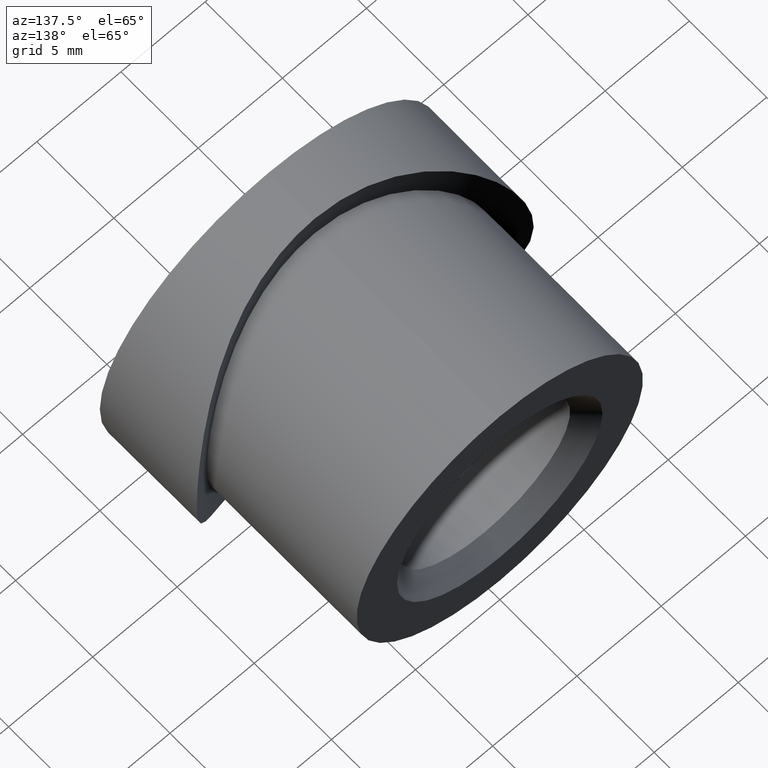
[diagram: clean part render]
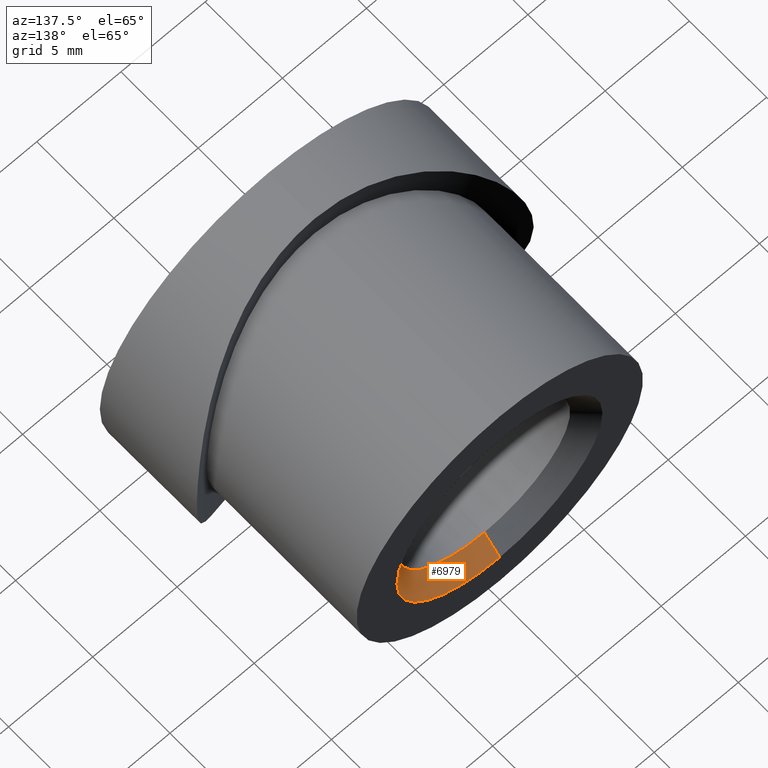
[diagram: same view with one face highlighted and labeled with its STEP entity id]
A machine part, auxiliary view. The second image highlights one B-rep face of the part: STEP entity #6979.
In plain terms, the highlighted conical surface has half-angle 45 deg.
Its self-contained STEP definition (entity closure, byte-faithful):
#439 = ORIENTED_EDGE ( 'NONE', *, *, #13262, .F. ) ;
#1266 = VECTOR ( 'NONE', #7629, 1000.000000000000100 ) ;
#2234 = VERTEX_POINT ( 'NONE', #7627 ) ;
#2438 = CARTESIAN_POINT ( 'NONE',  ( 0.0000000000000000000, 13.99999999999999800, 0.0000000000000000000 ) ) ;
#2620 = DIRECTION ( 'NONE',  ( 8.659560562354951300E-017, 0.7071067811865460200, -0.7071067811865489100 ) ) ;
#2732 = VERTEX_POINT ( 'NONE', #13981 ) ;
#3152 = ORIENTED_EDGE ( 'NONE', *, *, #9050, .F. ) ;
#3464 = CONICAL_SURFACE ( 'NONE', #10548, 5.099999999999996100, 0.7853981633974503900 ) ;
#3562 = ORIENTED_EDGE ( 'NONE', *, *, #7635, .T. ) ;
#3887 = AXIS2_PLACEMENT_3D ( 'NONE', #2438, #4873, #12984 ) ;
#4390 = LINE ( 'NONE', #13471, #1266 ) ;
#4419 = CARTESIAN_POINT ( 'NONE',  ( 0.0000000000000000000, 13.99999999999999800, 0.0000000000000000000 ) ) ;
#4873 = DIRECTION ( 'NONE',  ( 0.0000000000000000000, 1.000000000000000000, 0.0000000000000000000 ) ) ;
#4983 = DIRECTION ( 'NONE',  ( 0.0000000000000000000, -1.000000000000000000, 0.0000000000000000000 ) ) ;
#5462 = ORIENTED_EDGE ( 'NONE', *, *, #6555, .F. ) ;
#6555 = EDGE_CURVE ( 'NONE', #9365, #2234, #9291, .T. ) ;
#6979 = ADVANCED_FACE ( 'NONE', ( #14173 ), #3464, .F. ) ;
#7627 = CARTESIAN_POINT ( 'NONE',  ( 0.0000000000000000000, 15.00000000000000000, 6.100000000000001400 ) ) ;
#7629 = DIRECTION ( 'NONE',  ( 0.0000000000000000000, 0.7071067811865460200, 0.7071067811865489100 ) ) ;
#7635 = EDGE_CURVE ( 'NONE', #2732, #2234, #4390, .T. ) ;
#7769 = AXIS2_PLACEMENT_3D ( 'NONE', #11922, #4983, #13108 ) ;
#8004 = VECTOR ( 'NONE', #2620, 1000.000000000000100 ) ;
#9050 = EDGE_CURVE ( 'NONE', #12406, #9365, #12510, .T. ) ;
#9149 = DIRECTION ( 'NONE',  ( 0.0000000000000000000, 0.0000000000000000000, 1.000000000000000000 ) ) ;
#9291 = CIRCLE ( 'NONE', #7769, 6.100000000000001400 ) ;
#9365 = VERTEX_POINT ( 'NONE', #12640 ) ;
#9979 = EDGE_LOOP ( 'NONE', ( #3152, #439, #3562, #5462 ) ) ;
#10548 = AXIS2_PLACEMENT_3D ( 'NONE', #4419, #12505, #9149 ) ;
#10822 = CARTESIAN_POINT ( 'NONE',  ( 6.245698675651496900E-016, 13.99999999999999800, -5.099999999999996100 ) ) ;
#11922 = CARTESIAN_POINT ( 'NONE',  ( 0.0000000000000000000, 15.00000000000000000, 0.0000000000000000000 ) ) ;
#12406 = VERTEX_POINT ( 'NONE', #10822 ) ;
#12448 = CIRCLE ( 'NONE', #3887, 5.099999999999996100 ) ;
#12505 = DIRECTION ( 'NONE',  ( 0.0000000000000000000, 1.000000000000000000, 0.0000000000000000000 ) ) ;
#12510 = LINE ( 'NONE', #14474, #8004 ) ;
#12640 = CARTESIAN_POINT ( 'NONE',  ( 7.470345474798857300E-016, 15.00000000000000000, -6.100000000000001400 ) ) ;
#12984 = DIRECTION ( 'NONE',  ( 0.0000000000000000000, 0.0000000000000000000, -1.000000000000000000 ) ) ;
#13108 = DIRECTION ( 'NONE',  ( 0.0000000000000000000, 0.0000000000000000000, -1.000000000000000000 ) ) ;
#13262 = EDGE_CURVE ( 'NONE', #2732, #12406, #12448, .T. ) ;
#13471 = CARTESIAN_POINT ( 'NONE',  ( 0.0000000000000000000, 13.99999999999999800, 5.099999999999996100 ) ) ;
#13981 = CARTESIAN_POINT ( 'NONE',  ( 0.0000000000000000000, 13.99999999999999800, 5.099999999999996100 ) ) ;
#14173 = FACE_OUTER_BOUND ( 'NONE', #9979, .T. ) ;
#14474 = CARTESIAN_POINT ( 'NONE',  ( 6.245698675651496900E-016, 13.99999999999999800, -5.099999999999996100 ) ) ;